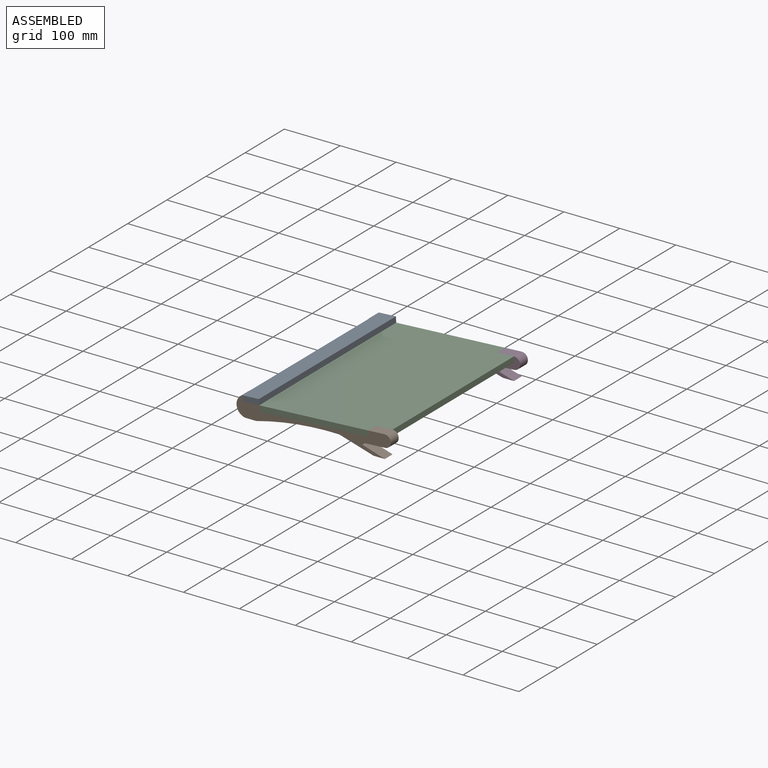
[diagram: assembled view]
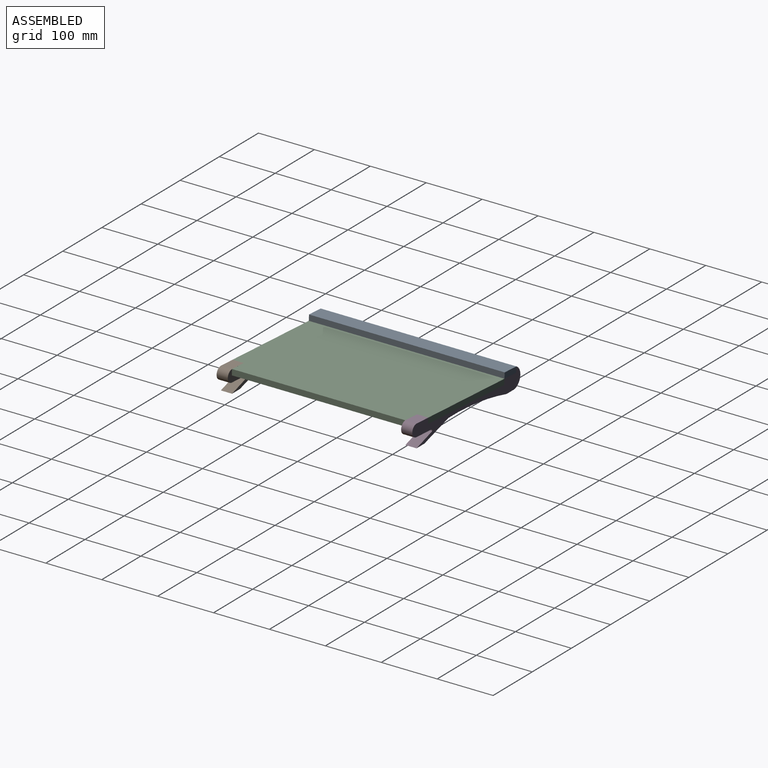
[diagram: assembled view, second angle]
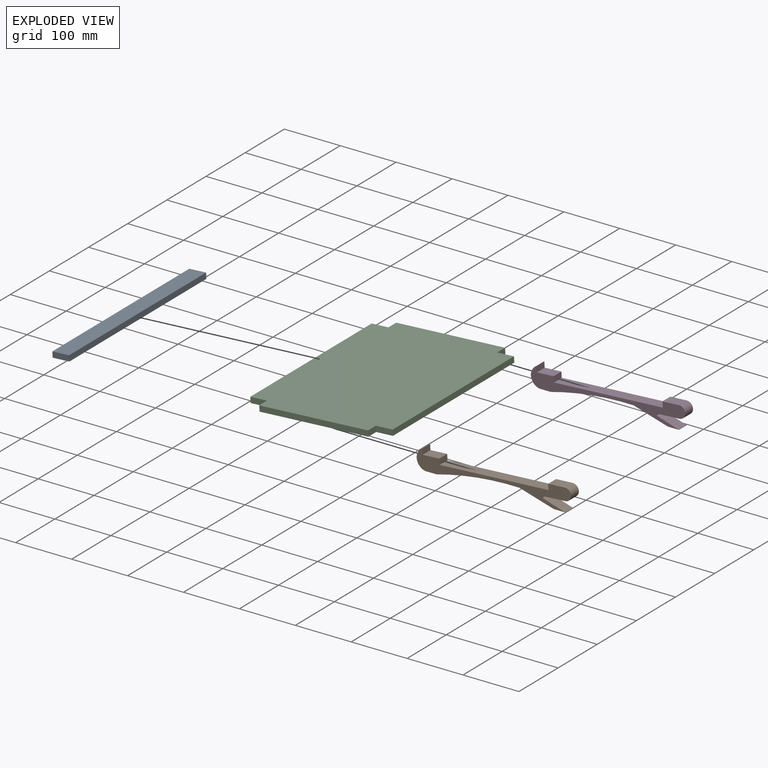
[diagram: exploded view]
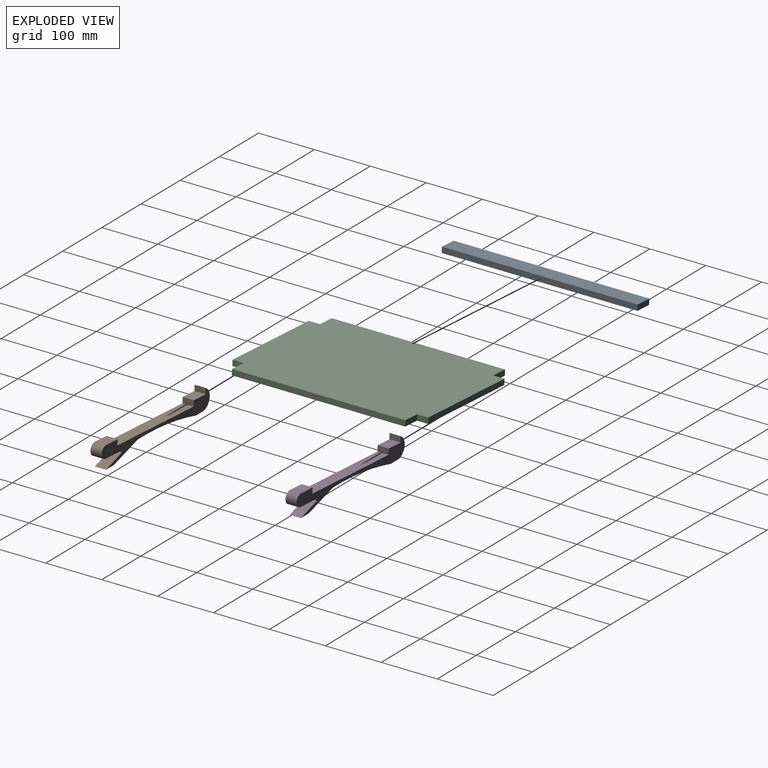
[diagram: exploded view, second angle]
ASSEMBLY  parts=4 mates=9
PART A: 6 faces, bbox 350x10x30 mm
  f0: plane 350x10mm, normal (0,0,1), area 3500mm2, adj f1,f3,f4,f5
  f1: plane 30x10mm, normal (-1,0,0), area 300mm2, adj f0,f2,f4,f5
  f2: plane 350x10mm, normal (0,0,-1), area 3500mm2, adj f1,f3,f4,f5
  f3: plane 30x10mm, normal (1,0,0), area 300mm2, adj f0,f2,f4,f5
  f4: plane 350x30mm, normal (0,-1,0), area 10500mm2, adj f0,f1,f2,f3
  f5: plane 350x30mm, normal (0,1,0), area 10500mm2, adj f0,f1,f2,f3
PART B: 17 faces, bbox 276.1x20x40 mm
  f0: plane 29.95x20mm, normal (-0.06,0,1), area 600mm2, adj f1,f14,f15,f16
  f1: plane 20x10mm, normal (-1,0,-0.06), area 200.3mm2, adj f0,f2,f15,f16
  f2: plane 194.66x20mm, normal (-0.06,0,1), area 3900mm2, adj f1,f3,f15,f16
  f3: plane 20x10mm, normal (1,0,0.06), area 200.3mm2, adj f2,f4,f15,f16
  f4: plane 29.95x20mm, normal (-0.06,0,1), area 600mm2, adj f3,f5,f15,f16
  f5: plane 20x9.98mm, normal (1,0,0.06), area 200mm2, adj f4,f6,f15,f16
  f6: cylinder r=18.72mm len=34.98mm, axis (0,1,0), area 925.3mm2, adj f5,f7,f15,f16
  f7: plane 20x20mm, normal (0,0,-1), area 400mm2, adj f6,f8,f15,f16
  f8: cylinder r=533.57mm len=148.59mm, axis (0,1,0), area 3003.5mm2, adj f7,f9,f15,f16
  f9: plane 61.41x20mm, normal (-0.28,0,-0.96), area 1280mm2, adj f8,f10,f15,f16
  f10: plane 20x20mm, normal (0,0,-1), area 400mm2, adj f9,f11,f15,f16
  f11: plane 38.68x20mm, normal (0.3,0,0.95), area 810.2mm2, adj f10,f12,f15,f16
  f12: cylinder r=2mm len=20mm, axis (0,1,0), area 111.2mm2, adj f11,f13,f15,f16
  f13: plane 38.21x20mm, normal (0.06,0,-1), area 765.5mm2, adj f12,f14,f15,f16
  f14: cylinder r=10.88mm len=21.76mm, axis (0,1,0), area 683.8mm2, adj f0,f13,f15,f16
  f15: plane 276.08x40mm, normal (0,-1,0), area 3906.6mm2, adj f0,f1,f2,f3,f4,f5,f6,f7
  f16: plane 276.08x40mm, normal (0,1,0), area 3906.6mm2, adj f0,f1,f2,f3,f4,f5,f6,f7
PART C: 14 faces, bbox 350x10x255 mm
  f0: plane 20x10mm, normal (0,0,1), area 200mm2, adj f1,f11,f12,f13
  f1: plane 195x10mm, normal (-1,0,0), area 1950mm2, adj f0,f2,f12,f13
  f2: plane 20x10mm, normal (0,0,-1), area 200mm2, adj f1,f3,f12,f13
  f3: plane 30x10mm, normal (-1,0,0), area 300mm2, adj f2,f4,f12,f13
  f4: plane 310x10mm, normal (0,0,-1), area 3100mm2, adj f3,f5,f12,f13
  f5: plane 30x10mm, normal (1,0,0), area 300mm2, adj f4,f6,f12,f13
  f6: plane 20x10mm, normal (0,0,-1), area 200mm2, adj f5,f7,f12,f13
  f7: plane 195x10mm, normal (1,0,0), area 1950mm2, adj f6,f8,f12,f13
  f8: plane 20x10mm, normal (0,0,1), area 200mm2, adj f7,f9,f12,f13
  f9: plane 30x10mm, normal (1,0,0), area 300mm2, adj f8,f10,f12,f13
  f10: plane 310x10mm, normal (0,0,1), area 3100mm2, adj f9,f11,f12,f13
  f11: plane 30x10mm, normal (-1,0,0), area 300mm2, adj f0,f10,f12,f13
  f12: plane 350x255mm, normal (0,-1,0), area 86850mm2, adj f0,f1,f2,f3,f4,f5,f6,f7
  f13: plane 350x255mm, normal (0,1,0), area 86850mm2, adj f0,f1,f2,f3,f4,f5,f6,f7
PART D: same geometry as B
PLACE A rot(axis=(0.59,-0.59,-0.55),122deg) t=(-230.17,175,35.87)mm
PLACE B t=(-115,20,20)mm
PLACE C rot(axis=(0.57,0.57,0.6),118.1deg) t=(-117.28,175,32.48)mm
PLACE D t=(-115,350,20)mm
MATE planar C.f1 <-> B.f15  axis (0,-1,0) through (-116.98,0,27.49)mm
MATE planar D.f1 <-> C.f8  axis (-1,0,-0.06) through (-19.65,340,33.24)mm
MATE planar B.f2 <-> C.f12  axis (-0.06,0,1) through (-116.69,10,22.5)mm
MATE planar A.f0 <-> B.f5  axis (-1,0,-0.06) through (-244.85,175,29.99)mm
MATE planar B.f6 <-> A.f3  axis (0,-1,0) through (-236.48,0,18.39)mm
MATE planar A.f4 <-> B.f4  axis (0.06,0,-1) through (-229.58,0,25.88)mm
MATE planar D.f2 <-> C.f12  axis (-0.06,0,1) through (-116.69,340,22.5)mm
MATE planar C.f0 <-> B.f1  axis (1,0,0.06) through (-19.65,0,33.23)mm
MATE planar D.f16 <-> C.f7  axis (0,1,0) through (-28.21,350,15.94)mm
